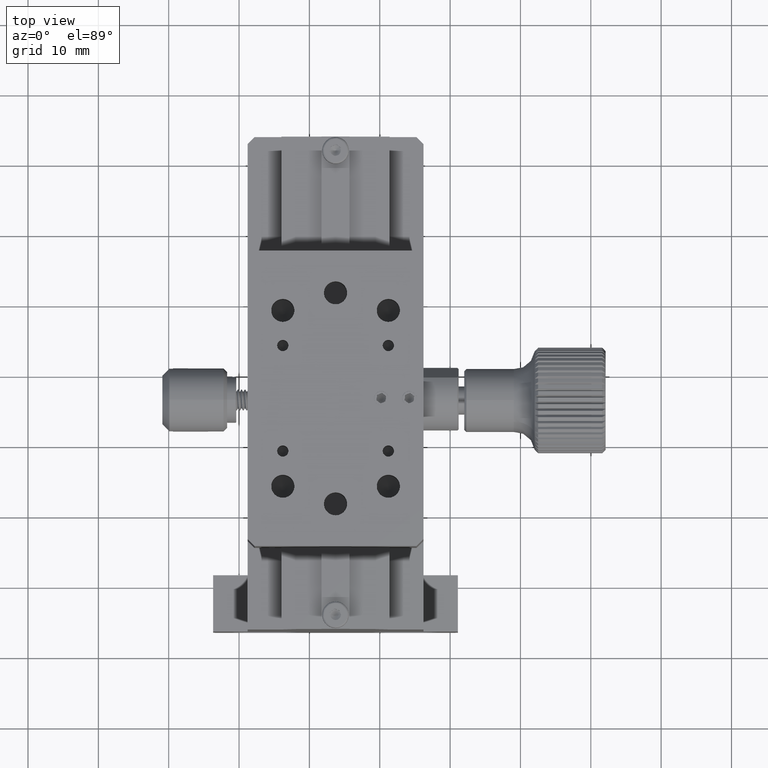
[diagram: clean part render]
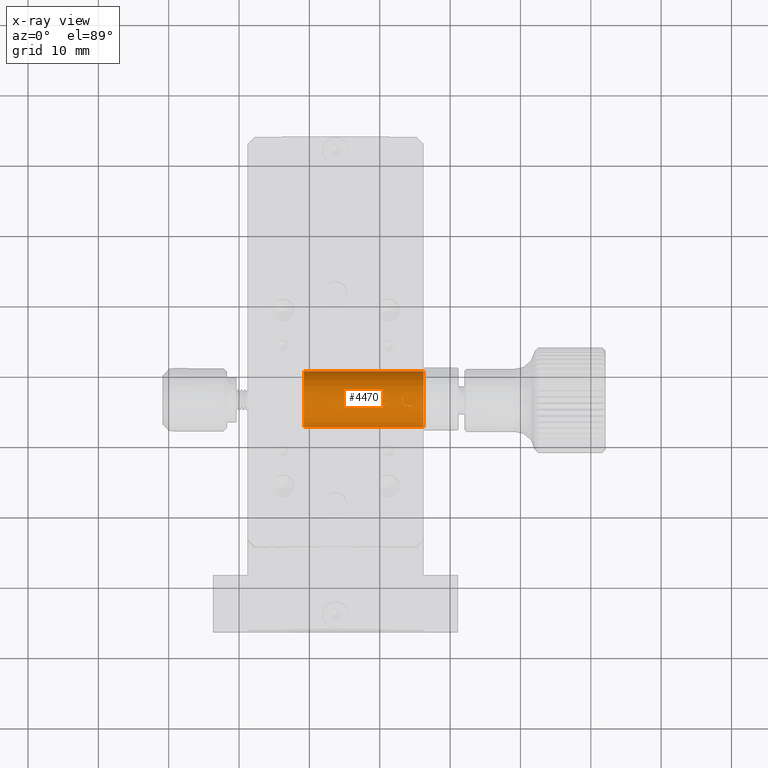
[diagram: x-ray — body ghosted, one internal face saturated and labeled with its STEP entity id]
A machine part, top view, then the same camera in x-ray: the body is ghosted and one INTERNAL B-rep face — a face not visible from any outside direction — is saturated and labeled: STEP entity #4470.
In plain terms, the highlighted cylindrical surface (bore or boss wall) has radius 4 mm, axis along (1, -0, -0).
Its self-contained STEP definition (entity closure, byte-faithful):
#940 = CARTESIAN_POINT ( 'NONE',  ( 70.84199754231667612, 47.03967182218404020, 86.47337153477108984 ) ) ;
#1145 = EDGE_CURVE ( 'NONE', #65166, #65166, #115385, .T. ) ;
#1513 = CARTESIAN_POINT ( 'NONE',  ( 69.39246656203461328, 46.85181553875139571, 86.50798492656213057 ) ) ;
#2109 = CARTESIAN_POINT ( 'NONE',  ( 71.20868282890177170, 45.95001843906810279, 86.54963143445412754 ) ) ;
#3056 = CARTESIAN_POINT ( 'NONE',  ( 73.31614761946870829, 45.70362822585835971, 86.52526370152519064 ) ) ;
#3284 = CARTESIAN_POINT ( 'NONE',  ( 70.48201549572722513, 47.21842650479508308, 86.43087857885532799 ) ) ;
#4470 = ADVANCED_FACE ( 'NONE', ( #108190, #12110, #90512, #10362, #38034 ), #65717, .F. ) ;
#4667 = CIRCLE ( 'NONE', #38542, 4.000000000000003553 ) ;
#5133 = DIRECTION ( 'NONE',  ( 0.000000000000000000, 0.000000000000000000, -1.000000000000000000 ) ) ;
#5152 = AXIS2_PLACEMENT_3D ( 'NONE', #111197, #22818, #5133 ) ;
#5655 = CARTESIAN_POINT ( 'NONE',  ( 71.23616878376222417, 46.22090550299444089, 86.55689688578647178 ) ) ;
#8136 = CARTESIAN_POINT ( 'NONE',  ( 65.96116878376221848, 42.40514869732624703, 81.35689688578641210 ) ) ;
#8348 = EDGE_LOOP ( 'NONE', ( #28324 ) ) ;
#8676 = VERTEX_POINT ( 'NONE', #8136 ) ;
#10127 = CARTESIAN_POINT ( 'NONE',  ( 75.23617740945688581, 46.08500188223300142, 86.55689909612073052 ) ) ;
#10362 = FACE_OUTER_BOUND ( 'NONE', #8348, .T. ) ;
#10926 = CARTESIAN_POINT ( 'NONE',  ( 70.21116878376223269, 45.19590550299397336, 86.42333904880919704 ) ) ;
#11291 = CARTESIAN_POINT ( 'NONE',  ( 74.21116878376221848, 45.19590550299398757, 86.42333904880919704 ) ) ;
#12096 = CARTESIAN_POINT ( 'NONE',  ( 71.23617740945694266, 46.08500188223298011, 86.55689909612073052 ) ) ;
#12110 = FACE_OUTER_BOUND ( 'NONE', #72286, .T. ) ;
#12737 = CARTESIAN_POINT ( 'NONE',  ( 75.23616878376220996, 46.22090550299444089, 86.55689688578645757 ) ) ;
#13604 = CARTESIAN_POINT ( 'NONE',  ( 73.39246656203461328, 46.85181553875139571, 86.50798492656213057 ) ) ;
#15059 = CARTESIAN_POINT ( 'NONE',  ( 59.21116878376223269, 46.22090550299402167, 78.55689688578645757 ) ) ;
#15763 = EDGE_LOOP ( 'NONE', ( #85888 ) ) ;
#19197 = CARTESIAN_POINT ( 'NONE',  ( 71.10614236277923794, 45.70376300375944112, 86.52525581776484387 ) ) ;
#19774 = CARTESIAN_POINT ( 'NONE',  ( 69.69391504450028663, 47.11593652218523687, 86.45583628688211775 ) ) ;
#20127 = CARTESIAN_POINT ( 'NONE',  ( 74.07519224430016891, 45.19590550299400178, 86.42333904880923967 ) ) ;
#20352 = CARTESIAN_POINT ( 'NONE',  ( 69.31614761946873671, 45.70362822585833129, 86.52526370152519064 ) ) ;
#21305 = CARTESIAN_POINT ( 'NONE',  ( 74.72822266798128510, 47.11592582188650624, 86.45583532285321837 ) ) ;
#21882 = CARTESIAN_POINT ( 'NONE',  ( 73.18616015887538140, 46.35680160766116842, 86.55689909591373521 ) ) ;
#22456 = CARTESIAN_POINT ( 'NONE',  ( 73.31618123865747805, 46.73802194987217007, 86.52525903441687660 ) ) ;
#22818 = DIRECTION ( 'NONE',  ( -1.000000000000000000, 1.110223024625128684E-16, 5.220154794718825476E-16 ) ) ;
#24670 = LINE ( 'NONE', #43502, #107102 ) ;
#26380 = CARTESIAN_POINT ( 'NONE',  ( 59.21116878376223269, 42.40514869732624703, 81.35689688578641210 ) ) ;
#27063 = ORIENTED_EDGE ( 'NONE', *, *, #41362, .T. ) ;
#27445 = CARTESIAN_POINT ( 'NONE',  ( 69.58063651054293075, 47.03989869802677504, 86.47332310437785452 ) ) ;
#27799 = CARTESIAN_POINT ( 'NONE',  ( 74.34714532322425384, 45.19590550299398046, 86.42333904880914019 ) ) ;
#27877 = DIRECTION ( 'NONE',  ( 0.000000000000000000, 0.000000000000000000, -1.000000000000000000 ) ) ;
#28072 = ORIENTED_EDGE ( 'NONE', *, *, #65486, .F. ) ;
#28115 = DIRECTION ( 'NONE',  ( 1.000000000000000000, -1.110223024625128684E-16, -5.220154794718825476E-16 ) ) ;
#28324 = ORIENTED_EDGE ( 'NONE', *, *, #54735, .F. ) ;
#29165 = CARTESIAN_POINT ( 'NONE',  ( 70.34704544422129402, 47.24591746753025490, 86.42333587699154407 ) ) ;
#29180 = CARTESIAN_POINT ( 'NONE',  ( 59.21116878376223269, 46.22090550299402167, 82.55689688578645757 ) ) ;
#29257 = CARTESIAN_POINT ( 'NONE',  ( 61.46116878376221848, 46.22090550299402167, 82.55689688578645757 ) ) ;
#29312 = CARTESIAN_POINT ( 'NONE',  ( 65.96116878376221848, 50.03666230866181763, 81.35689688578651158 ) ) ;
#29422 = CIRCLE ( 'NONE', #57701, 4.000000000000003553 ) ;
#29756 = CARTESIAN_POINT ( 'NONE',  ( 69.94174776628545942, 47.21892567886057890, 86.43075345350986538 ) ) ;
#30040 = VERTEX_POINT ( 'NONE', #108015 ) ;
#33471 = B_SPLINE_CURVE_WITH_KNOTS ( 'NONE', 3,
 ( #38018, #82803, #63962, #110482, #82211, #99905, #19197, #2109, #12096, #64534, #48035, #91644, #100476, #940, #92233, #3284, #29165, #37429, #29756, #19774, #27445, #1513, #109897, #39186, #92823, #99328, #55697, #20352, #81637, #55114, #65110, #108174, #63393, #10926 ),
 .UNSPECIFIED., .T., .F.,
 ( 4, 2, 2, 2, 2, 2, 2, 2, 2, 2, 2, 2, 2, 2, 2, 2, 4 ),
 ( -0.001607921824408833520, -0.001205925343871057332, -0.0008039288633332810361, -0.0004019323827955047397, 6.409774227144823810E-08, 0.0004020605782800478530, 0.0008040570588178240410, 0.001206053539355600229, 0.001608050019893376417, 0.002010046500431152822, 0.002412042980968929010, 0.002814039461506705198, 0.003216035942044481385, 0.003618032422582257573, 0.004020028903120033761, 0.004422025383657809949, 0.004824021864195586137 ),
 .UNSPECIFIED. ) ;
#36635 = CARTESIAN_POINT ( 'NONE',  ( 74.72837203222189828, 45.32584403558455932, 86.45582923083149751 ) ) ;
#37429 = CARTESIAN_POINT ( 'NONE',  ( 70.07511167171956856, 47.24589353051555918, 86.42334222273235866 ) ) ;
#38018 = CARTESIAN_POINT ( 'NONE',  ( 70.21116878376223269, 45.19590550299397336, 86.42333904880919704 ) ) ;
#38034 = FACE_BOUND ( 'NONE', #80626, .T. ) ;
#38542 = AXIS2_PLACEMENT_3D ( 'NONE', #29257, #28115, #100001 ) ;
#38958 = CARTESIAN_POINT ( 'NONE',  ( 74.84199754231670454, 47.03967182218406862, 86.47337153477108984 ) ) ;
#39186 = CARTESIAN_POINT ( 'NONE',  ( 69.21365169651376448, 46.49177777210228868, 86.54963226095756568 ) ) ;
#39542 = CARTESIAN_POINT ( 'NONE',  ( 74.34704544422133665, 47.24591746753024069, 86.42333587699154407 ) ) ;
#39546 = ORIENTED_EDGE ( 'NONE', *, *, #61408, .F. ) ;
#39613 = AXIS2_PLACEMENT_3D ( 'NONE', #46706, #53813, #27877 ) ;
#40114 = CARTESIAN_POINT ( 'NONE',  ( 73.21313915092260061, 45.95150706582681011, 86.54975744530376858 ) ) ;
#41362 = EDGE_CURVE ( 'NONE', #60999, #60999, #90411, .T. ) ;
#43502 = CARTESIAN_POINT ( 'NONE',  ( 59.21116878376223269, 50.03666230866181053, 81.35689688578648315 ) ) ;
#45475 = CARTESIAN_POINT ( 'NONE',  ( 74.21116878376221848, 45.19590550299398757, 86.42333904880919704 ) ) ;
#45505 = ORIENTED_EDGE ( 'NONE', *, *, #100494, .T. ) ;
#46048 = CARTESIAN_POINT ( 'NONE',  ( 75.23616015394046030, 46.35693920449683958, 86.55689467439464124 ) ) ;
#46197 = EDGE_CURVE ( 'NONE', #96944, #96944, #33471, .T. ) ;
#46706 = CARTESIAN_POINT ( 'NONE',  ( 76.21116878376221848, 46.22090550299402167, 82.55689688578644336 ) ) ;
#46869 = DIRECTION ( 'NONE',  ( 0.000000000000000000, 0.000000000000000000, -1.000000000000000000 ) ) ;
#47224 = CARTESIAN_POINT ( 'NONE',  ( 74.48201549572721092, 47.21842650479508308, 86.43087857885532799 ) ) ;
#48035 = CARTESIAN_POINT ( 'NONE',  ( 71.20919527690546147, 46.49031909381090344, 86.54975659441343794 ) ) ;
#49524 = CARTESIAN_POINT ( 'NONE',  ( 73.69406397941678222, 45.32591573684929642, 86.45584240535406195 ) ) ;
#51532 = AXIS2_PLACEMENT_3D ( 'NONE', #29180, #109913, #46869 ) ;
#53813 = DIRECTION ( 'NONE',  ( 1.000000000000000000, -1.110223024625128684E-16, -5.220154794718825476E-16 ) ) ;
#54735 = EDGE_CURVE ( 'NONE', #95785, #95785, #29422, .T. ) ;
#55114 = CARTESIAN_POINT ( 'NONE',  ( 69.58029973637469823, 45.40217138241673211, 86.47337823818929792 ) ) ;
#55697 = CARTESIAN_POINT ( 'NONE',  ( 69.21313915092262903, 45.95150706582679589, 86.54975744530376858 ) ) ;
#56894 = DIRECTION ( 'NONE',  ( 0.000000000000000000, 0.000000000000000000, -1.000000000000000000 ) ) ;
#57066 = VERTEX_POINT ( 'NONE', #80165 ) ;
#57701 = AXIS2_PLACEMENT_3D ( 'NONE', #73417, #110501, #56894 ) ;
#57802 = CARTESIAN_POINT ( 'NONE',  ( 73.21365169651373606, 46.49177777210229578, 86.54963226095756568 ) ) ;
#58756 = EDGE_CURVE ( 'NONE', #62645, #8676, #86046, .T. ) ;
#60999 = VERTEX_POINT ( 'NONE', #86359 ) ;
#61408 = EDGE_CURVE ( 'NONE', #57066, #8676, #63469, .T. ) ;
#62645 = VERTEX_POINT ( 'NONE', #29312 ) ;
#63393 = CARTESIAN_POINT ( 'NONE',  ( 70.07519224430019733, 45.19590550299398046, 86.42333904880923967 ) ) ;
#63469 = LINE ( 'NONE', #26380, #116366 ) ;
#63740 = CARTESIAN_POINT ( 'NONE',  ( 75.10614236277919531, 45.70376300375944112, 86.52525581776484387 ) ) ;
#63962 = CARTESIAN_POINT ( 'NONE',  ( 70.48051694815336532, 45.22286452337566232, 86.43074802705167770 ) ) ;
#64315 = CARTESIAN_POINT ( 'NONE',  ( 74.48051694815335111, 45.22286452337569784, 86.43074802705167770 ) ) ;
#64534 = CARTESIAN_POINT ( 'NONE',  ( 71.23616015394048873, 46.35693920449683247, 86.55689467439464124 ) ) ;
#65110 = CARTESIAN_POINT ( 'NONE',  ( 69.69406397941678222, 45.32591573684930353, 86.45584240535406195 ) ) ;
#65166 = VERTEX_POINT ( 'NONE', #12737 ) ;
#65486 = EDGE_CURVE ( 'NONE', #62645, #30040, #24670, .T. ) ;
#65717 = CYLINDRICAL_SURFACE ( 'NONE', #51532, 4.000000000000003553 ) ;
#67795 = CARTESIAN_POINT ( 'NONE',  ( 73.58029973637469823, 45.40217138241674633, 86.47337823818929792 ) ) ;
#72286 = EDGE_LOOP ( 'NONE', ( #27063 ) ) ;
#72594 = CARTESIAN_POINT ( 'NONE',  ( 74.84166042282058129, 45.40187979301785504, 86.47331634083887764 ) ) ;
#73173 = CARTESIAN_POINT ( 'NONE',  ( 75.10617599634181829, 46.73820875386639528, 86.52526048837255246 ) ) ;
#73417 = CARTESIAN_POINT ( 'NONE',  ( 59.21116878376223269, 46.22090550299402167, 82.55689688578645757 ) ) ;
#74916 = CARTESIAN_POINT ( 'NONE',  ( 74.07511167171949751, 47.24589353051557339, 86.42334222273235866 ) ) ;
#75508 = CARTESIAN_POINT ( 'NONE',  ( 73.18617741277581956, 46.08487932257418151, 86.55689467460172182 ) ) ;
#76071 = CARTESIAN_POINT ( 'NONE',  ( 73.94025045869851454, 45.22340496598884130, 86.43088391786778857 ) ) ;
#80165 = CARTESIAN_POINT ( 'NONE',  ( 61.46116878376221848, 42.40514869732625414, 81.35689688578639789 ) ) ;
#80626 = EDGE_LOOP ( 'NONE', ( #84526 ) ) ;
#81345 = ORIENTED_EDGE ( 'NONE', *, *, #58756, .T. ) ;
#81637 = CARTESIAN_POINT ( 'NONE',  ( 69.39220473867055716, 45.59033496134448882, 86.50804007933442108 ) ) ;
#81993 = CARTESIAN_POINT ( 'NONE',  ( 75.20919527690541884, 46.49031909381091765, 86.54975659441339531 ) ) ;
#82211 = CARTESIAN_POINT ( 'NONE',  ( 70.84166042282058129, 45.40187979301781951, 86.47331634083887764 ) ) ;
#82803 = CARTESIAN_POINT ( 'NONE',  ( 70.34714532322425384, 45.19590550299396625, 86.42333904880914019 ) ) ;
#84526 = ORIENTED_EDGE ( 'NONE', *, *, #46197, .T. ) ;
#85473 = CARTESIAN_POINT ( 'NONE',  ( 73.58063651054290233, 47.03989869802679635, 86.47332310437785452 ) ) ;
#85888 = ORIENTED_EDGE ( 'NONE', *, *, #1145, .T. ) ;
#86046 = CIRCLE ( 'NONE', #5152, 4.000000000000003553 ) ;
#86359 = CARTESIAN_POINT ( 'NONE',  ( 76.21116878376221848, 46.22090550299402167, 78.55689688578644336 ) ) ;
#87124 = DIRECTION ( 'NONE',  ( -1.000000000000000000, 1.110223024625128684E-16, 5.220154794718825476E-16 ) ) ;
#87909 = EDGE_LOOP ( 'NONE', ( #28072, #81345, #39546, #45505 ) ) ;
#90411 = CIRCLE ( 'NONE', #39613, 4.000000000000003553 ) ;
#90512 = FACE_BOUND ( 'NONE', #87909, .T. ) ;
#90573 = DIRECTION ( 'NONE',  ( 1.000000000000000000, -1.110223024625128684E-16, -5.220154794718825476E-16 ) ) ;
#91644 = CARTESIAN_POINT ( 'NONE',  ( 71.10617599634180408, 46.73820875386638818, 86.52526048837258088 ) ) ;
#92233 = CARTESIAN_POINT ( 'NONE',  ( 70.72822266798128510, 47.11592582188649914, 86.45583532285321837 ) ) ;
#92600 = CARTESIAN_POINT ( 'NONE',  ( 73.39220473867055716, 45.59033496134448171, 86.50804007933442108 ) ) ;
#92823 = CARTESIAN_POINT ( 'NONE',  ( 69.18616015887535298, 46.35680160766114710, 86.55689909591373521 ) ) ;
#93760 = CARTESIAN_POINT ( 'NONE',  ( 73.69391504450028663, 47.11593652218525818, 86.45583628688211775 ) ) ;
#94344 = CARTESIAN_POINT ( 'NONE',  ( 73.94174776628544521, 47.21892567886057890, 86.43075345350986538 ) ) ;
#95785 = VERTEX_POINT ( 'NONE', #15059 ) ;
#96944 = VERTEX_POINT ( 'NONE', #5655 ) ;
#99328 = CARTESIAN_POINT ( 'NONE',  ( 69.18617741277587641, 46.08487932257416730, 86.55689467460172182 ) ) ;
#99683 = CARTESIAN_POINT ( 'NONE',  ( 75.20868282890177170, 45.95001843906812411, 86.54963143445412754 ) ) ;
#99905 = CARTESIAN_POINT ( 'NONE',  ( 71.02984920694873949, 45.58996558096055907, 86.50798018993218363 ) ) ;
#100001 = DIRECTION ( 'NONE',  ( 0.000000000000000000, 0.000000000000000000, -1.000000000000000000 ) ) ;
#100476 = CARTESIAN_POINT ( 'NONE',  ( 71.03011070306067154, 46.85150628072518231, 86.50803528132571785 ) ) ;
#100494 = EDGE_CURVE ( 'NONE', #57066, #30040, #4667, .T. ) ;
#107102 = VECTOR ( 'NONE', #87124, 1000.000000000000000 ) ;
#108015 = CARTESIAN_POINT ( 'NONE',  ( 61.46116878376221848, 50.03666230866181053, 81.35689688578648315 ) ) ;
#108174 = CARTESIAN_POINT ( 'NONE',  ( 69.94025045869852875, 45.22340496598883419, 86.43088391786778857 ) ) ;
#108190 = FACE_BOUND ( 'NONE', #15763, .T. ) ;
#108528 = CARTESIAN_POINT ( 'NONE',  ( 75.02984920694875370, 45.58996558096057328, 86.50798018993218363 ) ) ;
#109096 = CARTESIAN_POINT ( 'NONE',  ( 75.03011070306064312, 46.85150628072519652, 86.50803528132567521 ) ) ;
#109897 = CARTESIAN_POINT ( 'NONE',  ( 69.31618123865750647, 46.73802194987216296, 86.52525903441687660 ) ) ;
#109913 = DIRECTION ( 'NONE',  ( 1.000000000000000000, -1.110223024625128684E-16, -5.220154794718825476E-16 ) ) ;
#110482 = CARTESIAN_POINT ( 'NONE',  ( 70.72837203222189828, 45.32584403558455932, 86.45582923083149751 ) ) ;
#110501 = DIRECTION ( 'NONE',  ( 1.000000000000000000, -1.110223024625128684E-16, -5.220154794718825476E-16 ) ) ;
#111197 = CARTESIAN_POINT ( 'NONE',  ( 65.96116878376221848, 46.22090550299402167, 82.55689688578645757 ) ) ;
#115385 = B_SPLINE_CURVE_WITH_KNOTS ( 'NONE', 3,
 ( #45475, #27799, #64315, #36635, #72594, #108528, #63740, #99683, #10127, #46048, #81993, #73173, #109096, #38958, #21305, #47224, #39542, #74916, #94344, #93760, #85473, #13604, #22456, #57802, #21882, #75508, #40114, #3056, #92600, #67795, #49524, #76071, #20127, #11291 ),
 .UNSPECIFIED., .T., .F.,
 ( 4, 2, 2, 2, 2, 2, 2, 2, 2, 2, 2, 2, 2, 2, 2, 2, 4 ),
 ( -0.001607921824408825497, -0.001205925343871048008, -0.0008039288633332707362, -0.0004019323827954934640, 6.409774228402498331E-08, 0.0004020605782800615140, 0.0008040570588178385693, 0.001206053539355616058, 0.001608050019893393547, 0.002010046500431171036, 0.002412042980968948525, 0.002814039461506725581, 0.003216035942044502636, 0.003618032422582280559, 0.004020028903120058048, 0.004422025383657835970, 0.004824021864195612158 ),
 .UNSPECIFIED. ) ;
#116366 = VECTOR ( 'NONE', #90573, 1000.000000000000000 ) ;